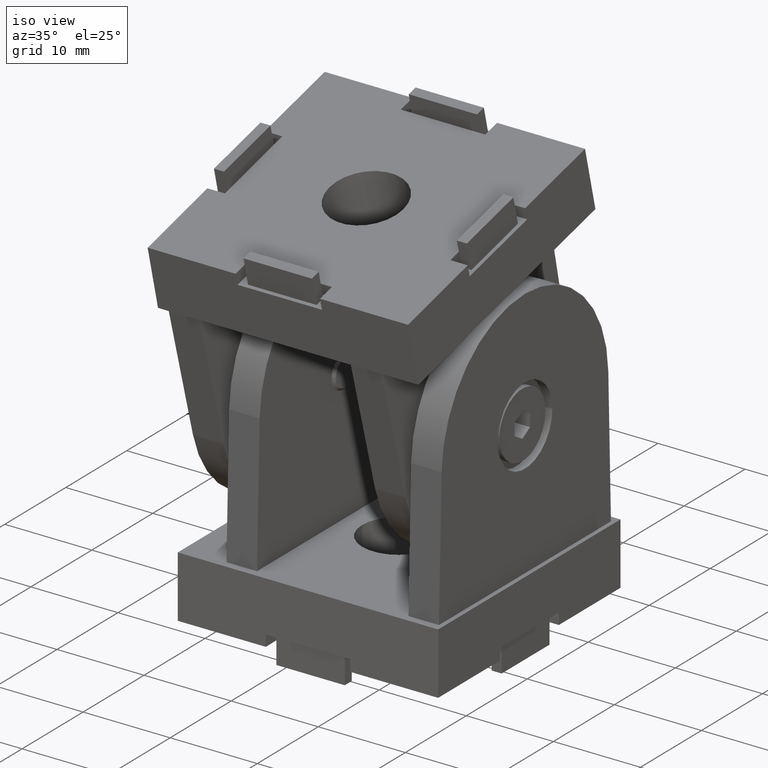
[diagram: clean part render]
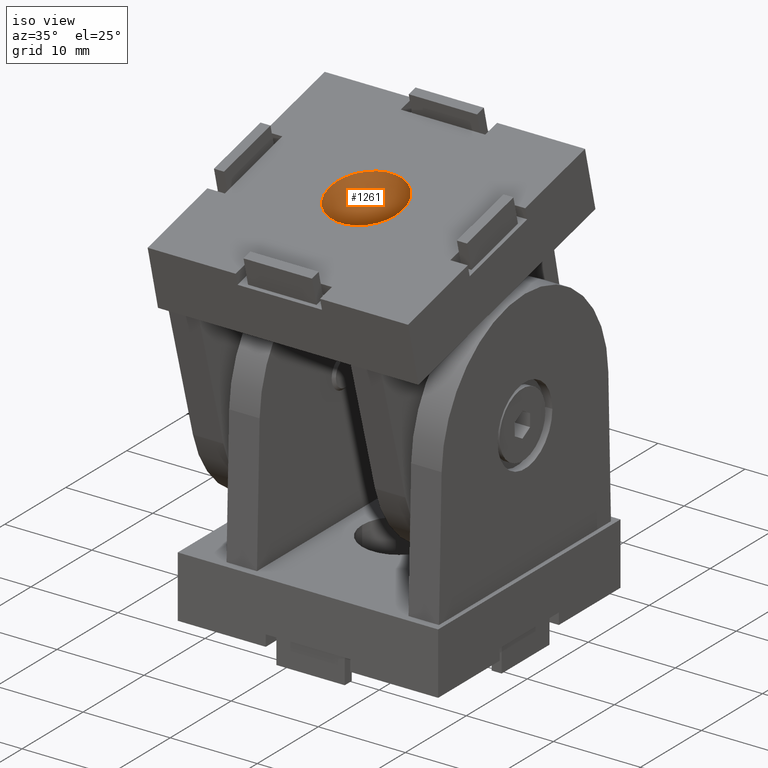
[diagram: same view with one face highlighted and labeled with its STEP entity id]
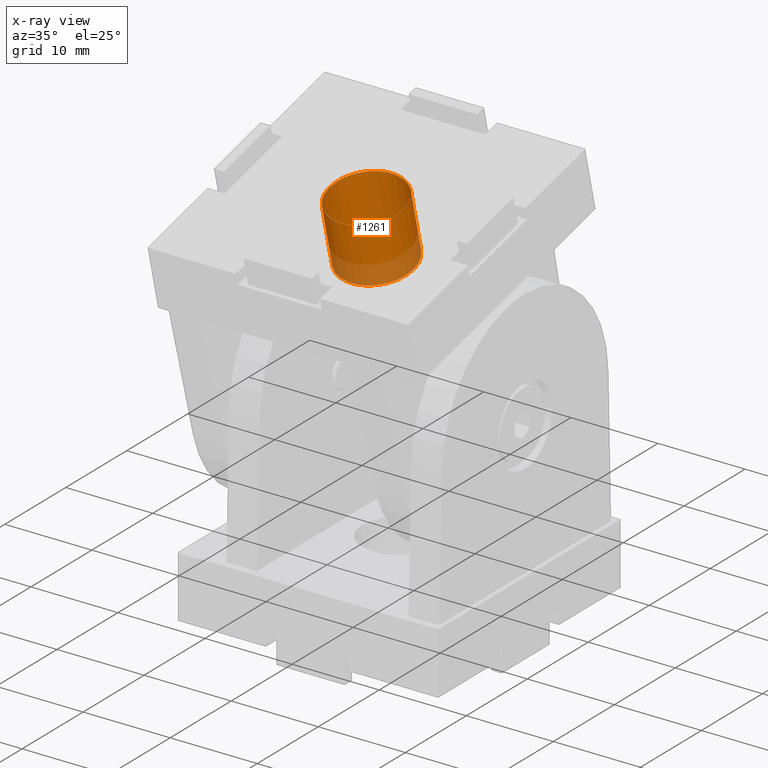
[diagram: x-ray of the same camera — body ghosted, the highlighted face saturated]
A machine part, iso view. The second image highlights one B-rep face of the part: STEP entity #1261.
The next image is the same camera in x-ray: the body ghosted, the highlighted face saturated — about 21% of this face is hidden behind the body in this view.
In plain terms, the highlighted cylindrical surface (bore or boss wall) has radius 4.25 mm, axis along (0, -0.2399, 0.9708).
Its self-contained STEP definition (entity closure, byte-faithful):
#328=CYLINDRICAL_SURFACE('',#1346,4.25);
#345=FACE_BOUND('',#489,.T.);
#404=FACE_OUTER_BOUND('',#488,.T.);
#488=EDGE_LOOP('',(#1030));
#489=EDGE_LOOP('',(#1031));
#535=CIRCLE('',#1347,4.25);
#536=CIRCLE('',#1348,4.25);
#632=VERTEX_POINT('',#1980);
#633=VERTEX_POINT('',#1982);
#780=EDGE_CURVE('',#632,#632,#535,.T.);
#781=EDGE_CURVE('',#633,#633,#536,.T.);
#1030=ORIENTED_EDGE('',*,*,#780,.F.);
#1031=ORIENTED_EDGE('',*,*,#781,.F.);
#1261=ADVANCED_FACE('',(#404,#345),#328,.F.);
#1346=AXIS2_PLACEMENT_3D('',#1979,#1613,#1614);
#1347=AXIS2_PLACEMENT_3D('',#1981,#1615,#1616);
#1348=AXIS2_PLACEMENT_3D('',#1983,#1617,#1618);
#1613=DIRECTION('center_axis',(0.,0.,-1.));
#1614=DIRECTION('ref_axis',(-1.,0.,0.));
#1615=DIRECTION('center_axis',(0.,0.,-1.));
#1616=DIRECTION('ref_axis',(-1.,0.,0.));
#1617=DIRECTION('center_axis',(0.,0.,1.));
#1618=DIRECTION('ref_axis',(-1.,0.,0.));
#1979=CARTESIAN_POINT('Origin',(0.,0.,55.598830922961));
#1980=CARTESIAN_POINT('',(4.25,-5.20474889637625E-16,7.1));
#1981=CARTESIAN_POINT('Origin',(0.,0.,7.1));
#1982=CARTESIAN_POINT('',(-4.25,0.,0.));
#1983=CARTESIAN_POINT('Origin',(0.,0.,0.));